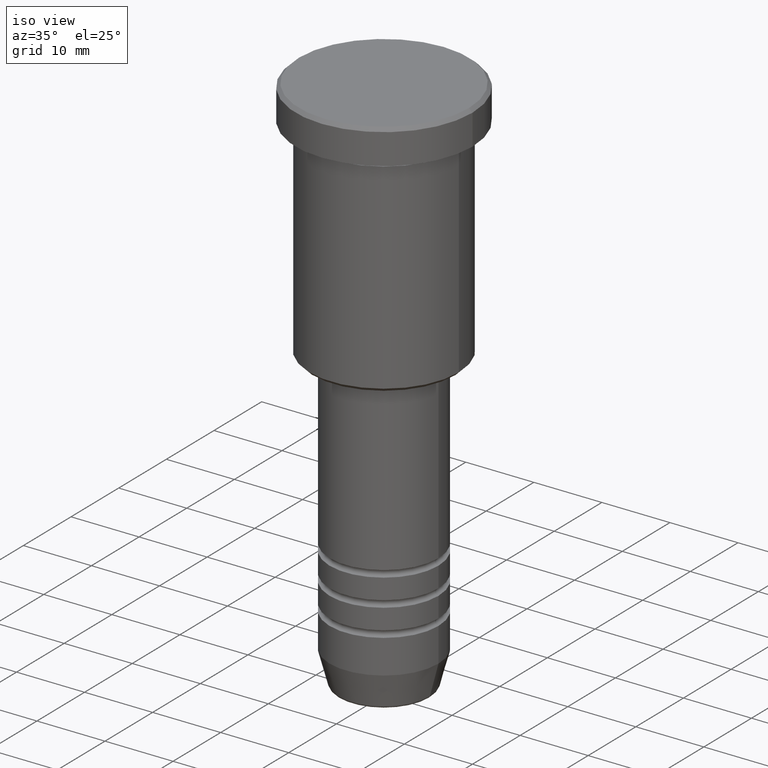
[diagram: clean part render]
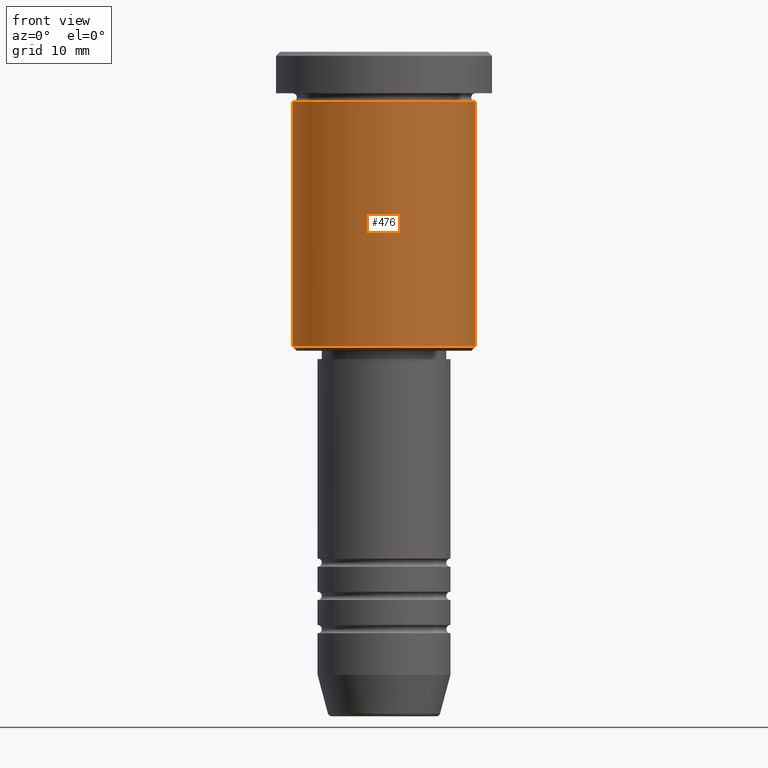
[diagram: tour spotlight — one face highlighted and labeled with its STEP entity id]
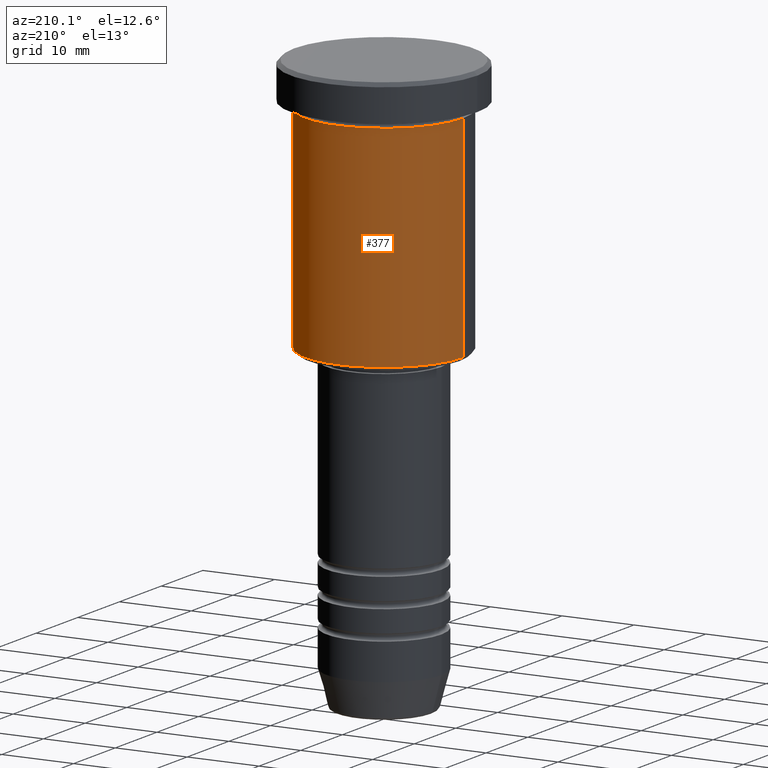
[diagram: tour spotlight — one face highlighted and labeled with its STEP entity id]
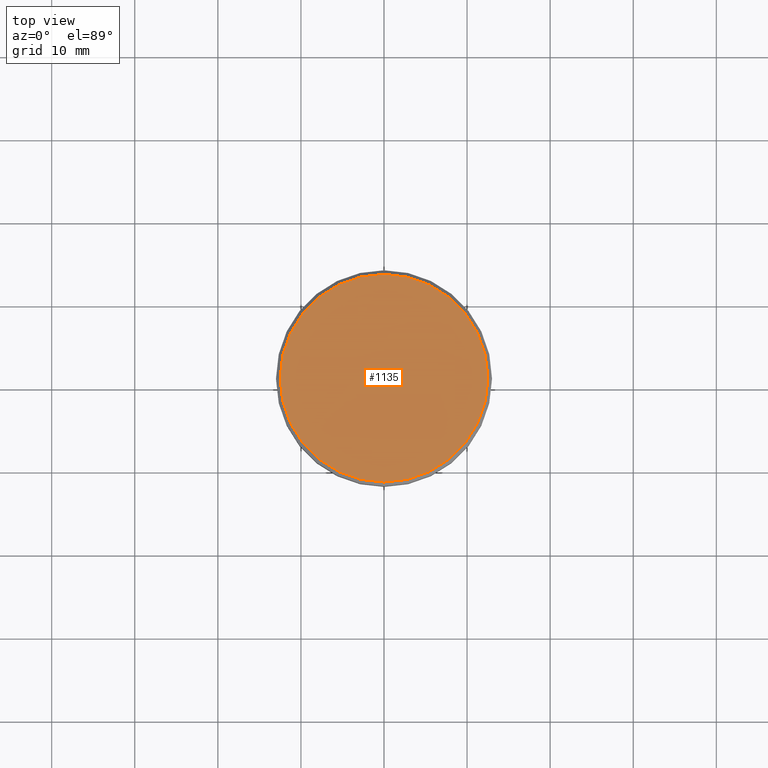
[diagram: tour spotlight — one face highlighted and labeled with its STEP entity id]
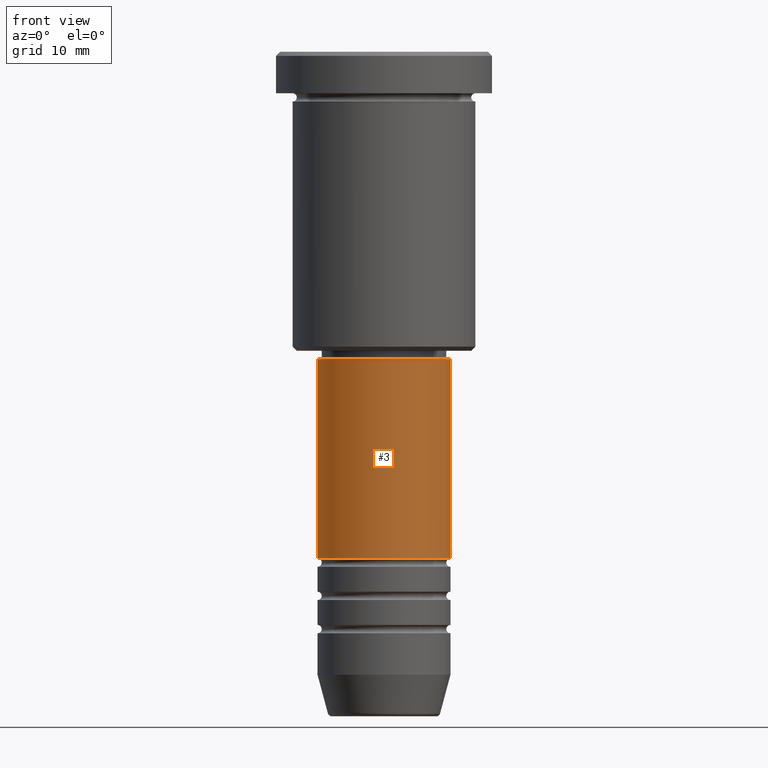
[diagram: tour spotlight — one face highlighted and labeled with its STEP entity id]
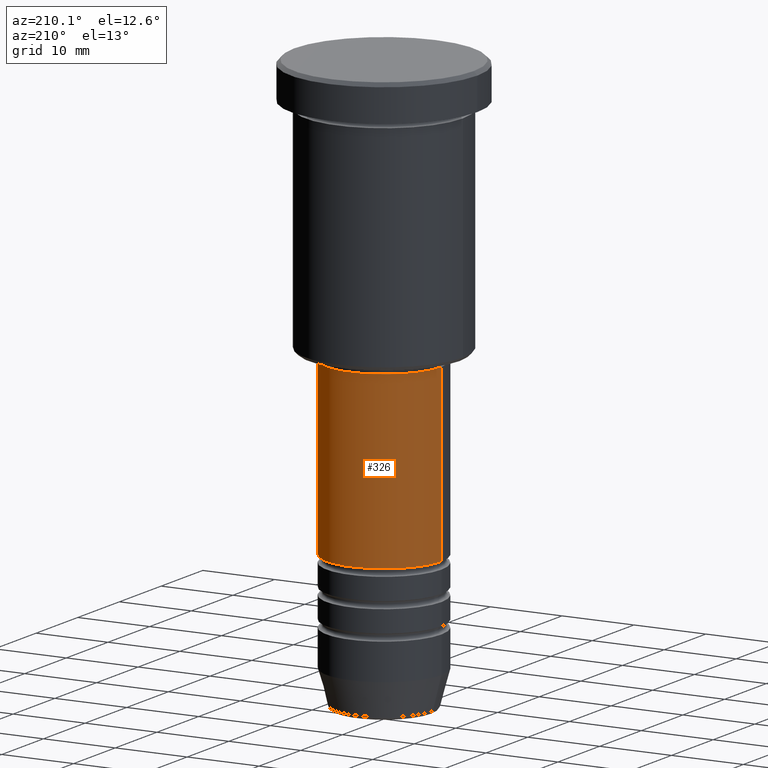
[diagram: tour spotlight — one face highlighted and labeled with its STEP entity id]
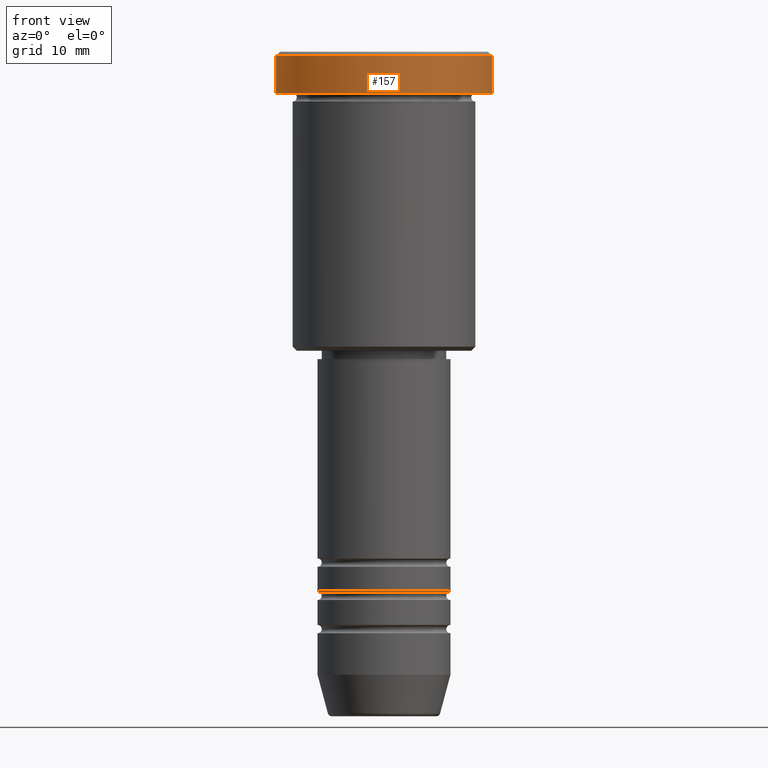
[diagram: tour spotlight — one face highlighted and labeled with its STEP entity id]
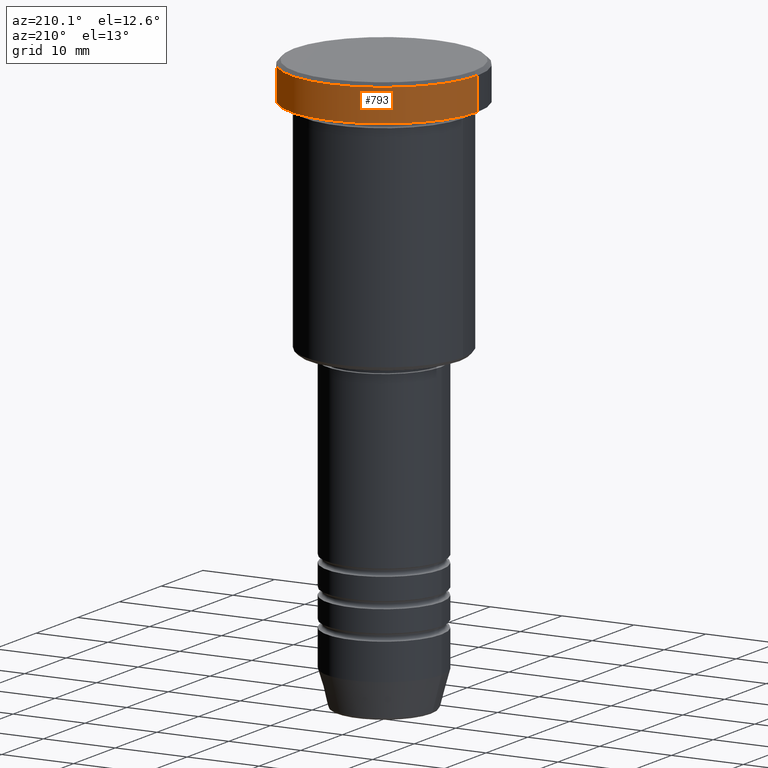
[diagram: tour spotlight — one face highlighted and labeled with its STEP entity id]
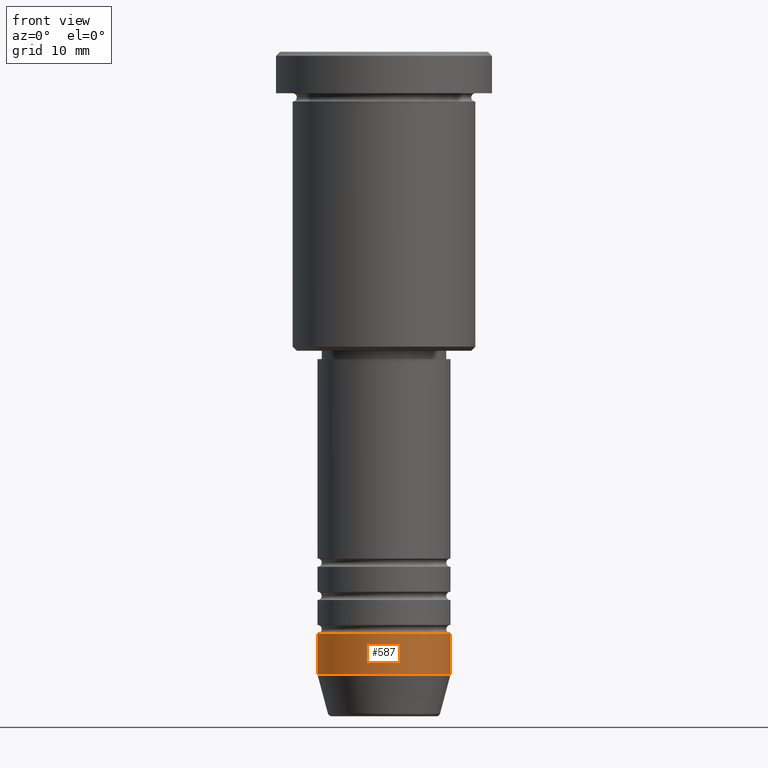
[diagram: tour spotlight — one face highlighted and labeled with its STEP entity id]
A machine part: a face-by-face anatomy tour. The part has 43 B-rep faces; the first image is the clean iso view, then the 8 largest visible faces are spotlighted one at a time (largest first), each with its STEP entity span.

Face 1 — front view, entity #476. In plain terms, the highlighted cylindrical surface (partial cylindrical patch) has radius 11 mm, axis along (-0, -0, 1).
Definition (entity closure, byte-faithful):
#49 = CARTESIAN_POINT ( 'NONE',  ( -11.00000000000000000, 1.347111479062088405E-15, 0.000000000000000000 ) ) ;
#53 = EDGE_CURVE ( 'NONE', #1038, #388, #695, .T. ) ;
#62 = CARTESIAN_POINT ( 'NONE',  ( 0.000000000000000000, 0.000000000000000000, 0.000000000000000000 ) ) ;
#199 = DIRECTION ( 'NONE',  ( -0.000000000000000000, -0.000000000000000000, 1.000000000000000000 ) ) ;
#205 = DIRECTION ( 'NONE',  ( 1.000000000000000000, 0.000000000000000000, 0.000000000000000000 ) ) ;
#235 = DIRECTION ( 'NONE',  ( -1.000000000000000000, 0.000000000000000000, 0.000000000000000000 ) ) ;
#251 = CARTESIAN_POINT ( 'NONE',  ( -11.00000000000000000, 1.347111479062088405E-15, -35.49999999999999289 ) ) ;
#282 = AXIS2_PLACEMENT_3D ( 'NONE', #62, #592, #710 ) ;
#297 = CARTESIAN_POINT ( 'NONE',  ( -11.00000000000000000, 1.347111479062088405E-15, -5.999999999999999112 ) ) ;
#332 = CARTESIAN_POINT ( 'NONE',  ( 11.00000000000000000, 0.000000000000000000, -35.49999999999999289 ) ) ;
#345 = CARTESIAN_POINT ( 'NONE',  ( 0.000000000000000000, 0.000000000000000000, -35.49999999999999289 ) ) ;
#388 = VERTEX_POINT ( 'NONE', #297 ) ;
#412 = FACE_OUTER_BOUND ( 'NONE', #640, .T. ) ;
#459 = EDGE_CURVE ( 'NONE', #1038, #584, #1178, .T. ) ;
#476 = ADVANCED_FACE ( 'NONE', ( #412 ), #516, .T. ) ;
#507 = CARTESIAN_POINT ( 'NONE',  ( 11.00000000000000000, 0.000000000000000000, -5.999999999999999112 ) ) ;
#516 = CYLINDRICAL_SURFACE ( 'NONE', #282, 11.00000000000000000 ) ;
#582 = DIRECTION ( 'NONE',  ( -0.000000000000000000, -0.000000000000000000, 1.000000000000000000 ) ) ;
#584 = VERTEX_POINT ( 'NONE', #332 ) ;
#590 = ORIENTED_EDGE ( 'NONE', *, *, #748, .T. ) ;
#592 = DIRECTION ( 'NONE',  ( -0.000000000000000000, -0.000000000000000000, 1.000000000000000000 ) ) ;
#640 = EDGE_LOOP ( 'NONE', ( #1124, #1181, #590, #644 ) ) ;
#644 = ORIENTED_EDGE ( 'NONE', *, *, #843, .F. ) ;
#695 = LINE ( 'NONE', #49, #700 ) ;
#700 = VECTOR ( 'NONE', #971, 1000.000000000000000 ) ;
#710 = DIRECTION ( 'NONE',  ( 1.000000000000000000, 0.000000000000000000, 0.000000000000000000 ) ) ;
#744 = VECTOR ( 'NONE', #582, 1000.000000000000000 ) ;
#748 = EDGE_CURVE ( 'NONE', #584, #1001, #1020, .T. ) ;
#764 = AXIS2_PLACEMENT_3D ( 'NONE', #927, #199, #205 ) ;
#843 = EDGE_CURVE ( 'NONE', #388, #1001, #953, .T. ) ;
#849 = AXIS2_PLACEMENT_3D ( 'NONE', #345, #970, #235 ) ;
#850 = CARTESIAN_POINT ( 'NONE',  ( 11.00000000000000000, 0.000000000000000000, 0.000000000000000000 ) ) ;
#927 = CARTESIAN_POINT ( 'NONE',  ( 0.000000000000000000, 0.000000000000000000, -5.999999999999999112 ) ) ;
#953 = CIRCLE ( 'NONE', #764, 11.00000000000000000 ) ;
#970 = DIRECTION ( 'NONE',  ( -0.000000000000000000, -0.000000000000000000, 1.000000000000000000 ) ) ;
#971 = DIRECTION ( 'NONE',  ( -0.000000000000000000, -0.000000000000000000, 1.000000000000000000 ) ) ;
#1001 = VERTEX_POINT ( 'NONE', #507 ) ;
#1020 = LINE ( 'NONE', #850, #744 ) ;
#1038 = VERTEX_POINT ( 'NONE', #251 ) ;
#1124 = ORIENTED_EDGE ( 'NONE', *, *, #53, .F. ) ;
#1178 = CIRCLE ( 'NONE', #849, 11.00000000000000000 ) ;
#1181 = ORIENTED_EDGE ( 'NONE', *, *, #459, .T. ) ;

Face 2 — auxiliary view, entity #377. In plain terms, the highlighted cylindrical surface (partial cylindrical patch) has radius 11 mm, axis along (-0, -0, 1).
Definition (entity closure, byte-faithful):
#26 = CYLINDRICAL_SURFACE ( 'NONE', #449, 11.00000000000000000 ) ;
#43 = DIRECTION ( 'NONE',  ( 1.000000000000000000, 0.000000000000000000, 0.000000000000000000 ) ) ;
#49 = CARTESIAN_POINT ( 'NONE',  ( -11.00000000000000000, 1.347111479062088405E-15, 0.000000000000000000 ) ) ;
#53 = EDGE_CURVE ( 'NONE', #1038, #388, #695, .T. ) ;
#61 = EDGE_CURVE ( 'NONE', #584, #1038, #605, .T. ) ;
#84 = AXIS2_PLACEMENT_3D ( 'NONE', #1145, #890, #979 ) ;
#128 = CARTESIAN_POINT ( 'NONE',  ( 0.000000000000000000, 0.000000000000000000, 0.000000000000000000 ) ) ;
#203 = AXIS2_PLACEMENT_3D ( 'NONE', #327, #588, #43 ) ;
#251 = CARTESIAN_POINT ( 'NONE',  ( -11.00000000000000000, 1.347111479062088405E-15, -35.49999999999999289 ) ) ;
#297 = CARTESIAN_POINT ( 'NONE',  ( -11.00000000000000000, 1.347111479062088405E-15, -5.999999999999999112 ) ) ;
#327 = CARTESIAN_POINT ( 'NONE',  ( 0.000000000000000000, 0.000000000000000000, -5.999999999999999112 ) ) ;
#332 = CARTESIAN_POINT ( 'NONE',  ( 11.00000000000000000, 0.000000000000000000, -35.49999999999999289 ) ) ;
#335 = ORIENTED_EDGE ( 'NONE', *, *, #61, .T. ) ;
#367 = ORIENTED_EDGE ( 'NONE', *, *, #53, .T. ) ;
#377 = ADVANCED_FACE ( 'NONE', ( #574 ), #26, .T. ) ;
#388 = VERTEX_POINT ( 'NONE', #297 ) ;
#423 = ORIENTED_EDGE ( 'NONE', *, *, #923, .F. ) ;
#449 = AXIS2_PLACEMENT_3D ( 'NONE', #128, #746, #482 ) ;
#482 = DIRECTION ( 'NONE',  ( 1.000000000000000000, 0.000000000000000000, 0.000000000000000000 ) ) ;
#507 = CARTESIAN_POINT ( 'NONE',  ( 11.00000000000000000, 0.000000000000000000, -5.999999999999999112 ) ) ;
#574 = FACE_OUTER_BOUND ( 'NONE', #594, .T. ) ;
#576 = ORIENTED_EDGE ( 'NONE', *, *, #748, .F. ) ;
#582 = DIRECTION ( 'NONE',  ( -0.000000000000000000, -0.000000000000000000, 1.000000000000000000 ) ) ;
#584 = VERTEX_POINT ( 'NONE', #332 ) ;
#588 = DIRECTION ( 'NONE',  ( -0.000000000000000000, -0.000000000000000000, 1.000000000000000000 ) ) ;
#594 = EDGE_LOOP ( 'NONE', ( #335, #367, #423, #576 ) ) ;
#605 = CIRCLE ( 'NONE', #84, 11.00000000000000000 ) ;
#632 = CIRCLE ( 'NONE', #203, 11.00000000000000000 ) ;
#695 = LINE ( 'NONE', #49, #700 ) ;
#700 = VECTOR ( 'NONE', #971, 1000.000000000000000 ) ;
#744 = VECTOR ( 'NONE', #582, 1000.000000000000000 ) ;
#746 = DIRECTION ( 'NONE',  ( -0.000000000000000000, -0.000000000000000000, 1.000000000000000000 ) ) ;
#748 = EDGE_CURVE ( 'NONE', #584, #1001, #1020, .T. ) ;
#850 = CARTESIAN_POINT ( 'NONE',  ( 11.00000000000000000, 0.000000000000000000, 0.000000000000000000 ) ) ;
#890 = DIRECTION ( 'NONE',  ( -0.000000000000000000, -0.000000000000000000, 1.000000000000000000 ) ) ;
#923 = EDGE_CURVE ( 'NONE', #1001, #388, #632, .T. ) ;
#971 = DIRECTION ( 'NONE',  ( -0.000000000000000000, -0.000000000000000000, 1.000000000000000000 ) ) ;
#979 = DIRECTION ( 'NONE',  ( -1.000000000000000000, 0.000000000000000000, 0.000000000000000000 ) ) ;
#1001 = VERTEX_POINT ( 'NONE', #507 ) ;
#1020 = LINE ( 'NONE', #850, #744 ) ;
#1038 = VERTEX_POINT ( 'NONE', #251 ) ;
#1145 = CARTESIAN_POINT ( 'NONE',  ( 0.000000000000000000, 0.000000000000000000, -35.49999999999999289 ) ) ;

Face 3 — top view, entity #1135. In plain terms, the highlighted planar face has unit normal (0, -0, 1).
Definition (entity closure, byte-faithful):
#64 = VERTEX_POINT ( 'NONE', #338 ) ;
#110 = CIRCLE ( 'NONE', #589, 12.50000000000002487 ) ;
#127 = EDGE_CURVE ( 'NONE', #537, #64, #887, .T. ) ;
#193 = FACE_OUTER_BOUND ( 'NONE', #490, .T. ) ;
#206 = CARTESIAN_POINT ( 'NONE',  ( 0.000000000000000000, 0.000000000000000000, 0.000000000000000000 ) ) ;
#224 = CARTESIAN_POINT ( 'NONE',  ( 12.50000000000002487, 1.561424668912876886E-15, 0.000000000000000000 ) ) ;
#307 = EDGE_CURVE ( 'NONE', #64, #537, #110, .T. ) ;
#316 = ORIENTED_EDGE ( 'NONE', *, *, #127, .T. ) ;
#333 = DIRECTION ( 'NONE',  ( 1.000000000000000000, 0.000000000000000000, 0.000000000000000000 ) ) ;
#338 = CARTESIAN_POINT ( 'NONE',  ( -12.50000000000002487, 0.000000000000000000, 0.000000000000000000 ) ) ;
#393 = DIRECTION ( 'NONE',  ( -0.000000000000000000, -0.000000000000000000, 1.000000000000000000 ) ) ;
#415 = DIRECTION ( 'NONE',  ( -0.000000000000000000, -0.000000000000000000, 1.000000000000000000 ) ) ;
#490 = EDGE_LOOP ( 'NONE', ( #651, #316 ) ) ;
#537 = VERTEX_POINT ( 'NONE', #224 ) ;
#543 = PLANE ( 'NONE',  #797 ) ;
#561 = CARTESIAN_POINT ( 'NONE',  ( 0.000000000000000000, 0.000000000000000000, 0.000000000000000000 ) ) ;
#565 = DIRECTION ( 'NONE',  ( 1.000000000000000000, 0.000000000000000000, 0.000000000000000000 ) ) ;
#589 = AXIS2_PLACEMENT_3D ( 'NONE', #206, #393, #565 ) ;
#651 = ORIENTED_EDGE ( 'NONE', *, *, #307, .T. ) ;
#665 = AXIS2_PLACEMENT_3D ( 'NONE', #866, #415, #333 ) ;
#730 = DIRECTION ( 'NONE',  ( 1.000000000000000000, 0.000000000000000000, 0.000000000000000000 ) ) ;
#797 = AXIS2_PLACEMENT_3D ( 'NONE', #561, #905, #730 ) ;
#866 = CARTESIAN_POINT ( 'NONE',  ( 0.000000000000000000, 0.000000000000000000, 0.000000000000000000 ) ) ;
#887 = CIRCLE ( 'NONE', #665, 12.50000000000002487 ) ;
#905 = DIRECTION ( 'NONE',  ( 0.000000000000000000, -0.000000000000000000, 1.000000000000000000 ) ) ;
#1135 = ADVANCED_FACE ( 'NONE', ( #193 ), #543, .T. ) ;

Face 4 — front view, entity #3. In plain terms, the highlighted cylindrical surface (partial cylindrical patch) has radius 8 mm, axis along (-0, -0, 1).
Definition (entity closure, byte-faithful):
#3 = ADVANCED_FACE ( 'NONE', ( #315 ), #683, .T. ) ;
#20 = ORIENTED_EDGE ( 'NONE', *, *, #495, .T. ) ;
#74 = AXIS2_PLACEMENT_3D ( 'NONE', #654, #356, #724 ) ;
#100 = VERTEX_POINT ( 'NONE', #975 ) ;
#198 = ORIENTED_EDGE ( 'NONE', *, *, #1136, .F. ) ;
#219 = CARTESIAN_POINT ( 'NONE',  ( 0.000000000000000000, 0.000000000000000000, 0.000000000000000000 ) ) ;
#230 = DIRECTION ( 'NONE',  ( -0.000000000000000000, -0.000000000000000000, 1.000000000000000000 ) ) ;
#239 = VECTOR ( 'NONE', #230, 1000.000000000000000 ) ;
#242 = LINE ( 'NONE', #882, #777 ) ;
#311 = VERTEX_POINT ( 'NONE', #1111 ) ;
#315 = FACE_OUTER_BOUND ( 'NONE', #628, .T. ) ;
#328 = DIRECTION ( 'NONE',  ( -0.000000000000000000, -0.000000000000000000, 1.000000000000000000 ) ) ;
#336 = CARTESIAN_POINT ( 'NONE',  ( 0.000000000000000000, 0.000000000000000000, -61.00000000000000711 ) ) ;
#356 = DIRECTION ( 'NONE',  ( -0.000000000000000000, -0.000000000000000000, 1.000000000000000000 ) ) ;
#406 = DIRECTION ( 'NONE',  ( 1.000000000000000000, 0.000000000000000000, 0.000000000000000000 ) ) ;
#422 = DIRECTION ( 'NONE',  ( 1.000000000000000000, 0.000000000000000000, 0.000000000000000000 ) ) ;
#460 = EDGE_CURVE ( 'NONE', #100, #943, #242, .T. ) ;
#462 = ORIENTED_EDGE ( 'NONE', *, *, #570, .T. ) ;
#495 = EDGE_CURVE ( 'NONE', #100, #1168, #1126, .T. ) ;
#570 = EDGE_CURVE ( 'NONE', #1168, #311, #778, .T. ) ;
#615 = CIRCLE ( 'NONE', #74, 8.000000000000000000 ) ;
#628 = EDGE_LOOP ( 'NONE', ( #1106, #20, #462, #198 ) ) ;
#647 = AXIS2_PLACEMENT_3D ( 'NONE', #336, #963, #406 ) ;
#654 = CARTESIAN_POINT ( 'NONE',  ( 0.000000000000000000, 0.000000000000000000, -37.00000000000000711 ) ) ;
#683 = CYLINDRICAL_SURFACE ( 'NONE', #1039, 8.000000000000000000 ) ;
#698 = CARTESIAN_POINT ( 'NONE',  ( 8.000000000000000000, 0.000000000000000000, 0.000000000000000000 ) ) ;
#711 = DIRECTION ( 'NONE',  ( -0.000000000000000000, -0.000000000000000000, 1.000000000000000000 ) ) ;
#724 = DIRECTION ( 'NONE',  ( 1.000000000000000000, 0.000000000000000000, 0.000000000000000000 ) ) ;
#777 = VECTOR ( 'NONE', #328, 1000.000000000000000 ) ;
#778 = LINE ( 'NONE', #698, #239 ) ;
#882 = CARTESIAN_POINT ( 'NONE',  ( -8.000000000000000000, 9.797174393178825657E-16, 0.000000000000000000 ) ) ;
#943 = VERTEX_POINT ( 'NONE', #989 ) ;
#963 = DIRECTION ( 'NONE',  ( -0.000000000000000000, -0.000000000000000000, 1.000000000000000000 ) ) ;
#975 = CARTESIAN_POINT ( 'NONE',  ( -8.000000000000000000, 9.797174393178825657E-16, -61.00000000000000711 ) ) ;
#989 = CARTESIAN_POINT ( 'NONE',  ( -8.000000000000000000, 9.797174393178825657E-16, -37.00000000000000711 ) ) ;
#998 = CARTESIAN_POINT ( 'NONE',  ( 8.000000000000000000, 0.000000000000000000, -61.00000000000000711 ) ) ;
#1039 = AXIS2_PLACEMENT_3D ( 'NONE', #219, #711, #422 ) ;
#1106 = ORIENTED_EDGE ( 'NONE', *, *, #460, .F. ) ;
#1111 = CARTESIAN_POINT ( 'NONE',  ( 8.000000000000000000, 0.000000000000000000, -37.00000000000000711 ) ) ;
#1126 = CIRCLE ( 'NONE', #647, 8.000000000000000000 ) ;
#1136 = EDGE_CURVE ( 'NONE', #943, #311, #615, .T. ) ;
#1168 = VERTEX_POINT ( 'NONE', #998 ) ;

Face 5 — auxiliary view, entity #326. In plain terms, the highlighted cylindrical surface (partial cylindrical patch) has radius 8 mm, axis along (-0, -0, 1).
Definition (entity closure, byte-faithful):
#100 = VERTEX_POINT ( 'NONE', #975 ) ;
#119 = EDGE_LOOP ( 'NONE', ( #855, #805, #1093, #542 ) ) ;
#123 = DIRECTION ( 'NONE',  ( -0.000000000000000000, -0.000000000000000000, 1.000000000000000000 ) ) ;
#180 = AXIS2_PLACEMENT_3D ( 'NONE', #682, #123, #579 ) ;
#230 = DIRECTION ( 'NONE',  ( -0.000000000000000000, -0.000000000000000000, 1.000000000000000000 ) ) ;
#239 = VECTOR ( 'NONE', #230, 1000.000000000000000 ) ;
#242 = LINE ( 'NONE', #882, #777 ) ;
#290 = CARTESIAN_POINT ( 'NONE',  ( 0.000000000000000000, 0.000000000000000000, -61.00000000000000711 ) ) ;
#306 = FACE_OUTER_BOUND ( 'NONE', #119, .T. ) ;
#311 = VERTEX_POINT ( 'NONE', #1111 ) ;
#326 = ADVANCED_FACE ( 'NONE', ( #306 ), #1015, .T. ) ;
#328 = DIRECTION ( 'NONE',  ( -0.000000000000000000, -0.000000000000000000, 1.000000000000000000 ) ) ;
#368 = CARTESIAN_POINT ( 'NONE',  ( 0.000000000000000000, 0.000000000000000000, -37.00000000000000711 ) ) ;
#396 = DIRECTION ( 'NONE',  ( -0.000000000000000000, -0.000000000000000000, 1.000000000000000000 ) ) ;
#444 = DIRECTION ( 'NONE',  ( 1.000000000000000000, 0.000000000000000000, 0.000000000000000000 ) ) ;
#458 = DIRECTION ( 'NONE',  ( -0.000000000000000000, -0.000000000000000000, 1.000000000000000000 ) ) ;
#460 = EDGE_CURVE ( 'NONE', #100, #943, #242, .T. ) ;
#469 = CIRCLE ( 'NONE', #631, 8.000000000000000000 ) ;
#531 = AXIS2_PLACEMENT_3D ( 'NONE', #368, #458, #444 ) ;
#542 = ORIENTED_EDGE ( 'NONE', *, *, #570, .F. ) ;
#570 = EDGE_CURVE ( 'NONE', #1168, #311, #778, .T. ) ;
#579 = DIRECTION ( 'NONE',  ( 1.000000000000000000, 0.000000000000000000, 0.000000000000000000 ) ) ;
#631 = AXIS2_PLACEMENT_3D ( 'NONE', #290, #396, #1120 ) ;
#661 = EDGE_CURVE ( 'NONE', #311, #943, #792, .T. ) ;
#682 = CARTESIAN_POINT ( 'NONE',  ( 0.000000000000000000, 0.000000000000000000, 0.000000000000000000 ) ) ;
#698 = CARTESIAN_POINT ( 'NONE',  ( 8.000000000000000000, 0.000000000000000000, 0.000000000000000000 ) ) ;
#749 = EDGE_CURVE ( 'NONE', #1168, #100, #469, .T. ) ;
#777 = VECTOR ( 'NONE', #328, 1000.000000000000000 ) ;
#778 = LINE ( 'NONE', #698, #239 ) ;
#792 = CIRCLE ( 'NONE', #531, 8.000000000000000000 ) ;
#805 = ORIENTED_EDGE ( 'NONE', *, *, #460, .T. ) ;
#855 = ORIENTED_EDGE ( 'NONE', *, *, #749, .T. ) ;
#882 = CARTESIAN_POINT ( 'NONE',  ( -8.000000000000000000, 9.797174393178825657E-16, 0.000000000000000000 ) ) ;
#943 = VERTEX_POINT ( 'NONE', #989 ) ;
#975 = CARTESIAN_POINT ( 'NONE',  ( -8.000000000000000000, 9.797174393178825657E-16, -61.00000000000000711 ) ) ;
#989 = CARTESIAN_POINT ( 'NONE',  ( -8.000000000000000000, 9.797174393178825657E-16, -37.00000000000000711 ) ) ;
#998 = CARTESIAN_POINT ( 'NONE',  ( 8.000000000000000000, 0.000000000000000000, -61.00000000000000711 ) ) ;
#1015 = CYLINDRICAL_SURFACE ( 'NONE', #180, 8.000000000000000000 ) ;
#1093 = ORIENTED_EDGE ( 'NONE', *, *, #661, .F. ) ;
#1111 = CARTESIAN_POINT ( 'NONE',  ( 8.000000000000000000, 0.000000000000000000, -37.00000000000000711 ) ) ;
#1120 = DIRECTION ( 'NONE',  ( 1.000000000000000000, 0.000000000000000000, 0.000000000000000000 ) ) ;
#1168 = VERTEX_POINT ( 'NONE', #998 ) ;

Face 6 — front view, entity #157. In plain terms, the highlighted cylindrical surface (partial cylindrical patch) has radius 13 mm, axis along (-0, -0, 1).
Definition (entity closure, byte-faithful):
#52 = CIRCLE ( 'NONE', #93, 13.00000000000000000 ) ;
#73 = ORIENTED_EDGE ( 'NONE', *, *, #880, .F. ) ;
#77 = VERTEX_POINT ( 'NONE', #1066 ) ;
#93 = AXIS2_PLACEMENT_3D ( 'NONE', #874, #784, #1149 ) ;
#101 = CARTESIAN_POINT ( 'NONE',  ( 13.00000000000000000, 0.000000000000000000, 0.000000000000000000 ) ) ;
#144 = CARTESIAN_POINT ( 'NONE',  ( 13.00000000000000000, 0.000000000000000000, -0.4999999999999796274 ) ) ;
#156 = VERTEX_POINT ( 'NONE', #160 ) ;
#157 = ADVANCED_FACE ( 'NONE', ( #527 ), #408, .T. ) ;
#160 = CARTESIAN_POINT ( 'NONE',  ( 13.00000000000000000, 0.000000000000000000, -5.000000000000000000 ) ) ;
#221 = VECTOR ( 'NONE', #1030, 1000.000000000000000 ) ;
#321 = DIRECTION ( 'NONE',  ( -0.000000000000000000, -0.000000000000000000, 1.000000000000000000 ) ) ;
#365 = CARTESIAN_POINT ( 'NONE',  ( 0.000000000000000000, 0.000000000000000000, -5.000000000000000000 ) ) ;
#369 = DIRECTION ( 'NONE',  ( 1.000000000000000000, 0.000000000000000000, 0.000000000000000000 ) ) ;
#408 = CYLINDRICAL_SURFACE ( 'NONE', #848, 13.00000000000000000 ) ;
#420 = CARTESIAN_POINT ( 'NONE',  ( -13.00000000000000000, 1.592040838891559095E-15, -5.000000000000000000 ) ) ;
#438 = ORIENTED_EDGE ( 'NONE', *, *, #575, .T. ) ;
#481 = LINE ( 'NONE', #571, #221 ) ;
#527 = FACE_OUTER_BOUND ( 'NONE', #741, .T. ) ;
#571 = CARTESIAN_POINT ( 'NONE',  ( -13.00000000000000000, 1.592040838891559095E-15, 0.000000000000000000 ) ) ;
#573 = AXIS2_PLACEMENT_3D ( 'NONE', #365, #742, #1107 ) ;
#575 = EDGE_CURVE ( 'NONE', #980, #77, #52, .T. ) ;
#625 = LINE ( 'NONE', #101, #831 ) ;
#714 = EDGE_CURVE ( 'NONE', #156, #980, #625, .T. ) ;
#741 = EDGE_LOOP ( 'NONE', ( #73, #789, #907, #438 ) ) ;
#742 = DIRECTION ( 'NONE',  ( -0.000000000000000000, -0.000000000000000000, 1.000000000000000000 ) ) ;
#784 = DIRECTION ( 'NONE',  ( 0.000000000000000000, 0.000000000000000000, -1.000000000000000000 ) ) ;
#789 = ORIENTED_EDGE ( 'NONE', *, *, #1082, .T. ) ;
#831 = VECTOR ( 'NONE', #1091, 1000.000000000000000 ) ;
#848 = AXIS2_PLACEMENT_3D ( 'NONE', #1139, #321, #369 ) ;
#874 = CARTESIAN_POINT ( 'NONE',  ( 0.000000000000000000, 0.000000000000000000, -0.4999999999999796274 ) ) ;
#880 = EDGE_CURVE ( 'NONE', #1031, #77, #481, .T. ) ;
#907 = ORIENTED_EDGE ( 'NONE', *, *, #714, .T. ) ;
#980 = VERTEX_POINT ( 'NONE', #144 ) ;
#986 = CIRCLE ( 'NONE', #573, 13.00000000000000000 ) ;
#1030 = DIRECTION ( 'NONE',  ( -0.000000000000000000, -0.000000000000000000, 1.000000000000000000 ) ) ;
#1031 = VERTEX_POINT ( 'NONE', #420 ) ;
#1066 = CARTESIAN_POINT ( 'NONE',  ( -13.00000000000000000, 1.592040838891559095E-15, -0.4999999999999796274 ) ) ;
#1082 = EDGE_CURVE ( 'NONE', #1031, #156, #986, .T. ) ;
#1091 = DIRECTION ( 'NONE',  ( -0.000000000000000000, -0.000000000000000000, 1.000000000000000000 ) ) ;
#1107 = DIRECTION ( 'NONE',  ( 1.000000000000000000, 0.000000000000000000, 0.000000000000000000 ) ) ;
#1139 = CARTESIAN_POINT ( 'NONE',  ( 0.000000000000000000, 0.000000000000000000, 0.000000000000000000 ) ) ;
#1149 = DIRECTION ( 'NONE',  ( 1.000000000000000000, 0.000000000000000000, 0.000000000000000000 ) ) ;

Face 7 — auxiliary view, entity #793. In plain terms, the highlighted cylindrical surface (partial cylindrical patch) has radius 13 mm, axis along (-0, -0, 1).
Definition (entity closure, byte-faithful):
#13 = CYLINDRICAL_SURFACE ( 'NONE', #383, 13.00000000000000000 ) ;
#67 = EDGE_LOOP ( 'NONE', ( #961, #514, #877, #739 ) ) ;
#77 = VERTEX_POINT ( 'NONE', #1066 ) ;
#83 = DIRECTION ( 'NONE',  ( 0.000000000000000000, 0.000000000000000000, -1.000000000000000000 ) ) ;
#91 = AXIS2_PLACEMENT_3D ( 'NONE', #716, #1096, #349 ) ;
#101 = CARTESIAN_POINT ( 'NONE',  ( 13.00000000000000000, 0.000000000000000000, 0.000000000000000000 ) ) ;
#144 = CARTESIAN_POINT ( 'NONE',  ( 13.00000000000000000, 0.000000000000000000, -0.4999999999999796274 ) ) ;
#148 = CIRCLE ( 'NONE', #91, 13.00000000000000000 ) ;
#156 = VERTEX_POINT ( 'NONE', #160 ) ;
#160 = CARTESIAN_POINT ( 'NONE',  ( 13.00000000000000000, 0.000000000000000000, -5.000000000000000000 ) ) ;
#179 = EDGE_CURVE ( 'NONE', #156, #1031, #148, .T. ) ;
#221 = VECTOR ( 'NONE', #1030, 1000.000000000000000 ) ;
#240 = AXIS2_PLACEMENT_3D ( 'NONE', #900, #83, #312 ) ;
#259 = CIRCLE ( 'NONE', #240, 13.00000000000000000 ) ;
#295 = CARTESIAN_POINT ( 'NONE',  ( 0.000000000000000000, 0.000000000000000000, 0.000000000000000000 ) ) ;
#312 = DIRECTION ( 'NONE',  ( 1.000000000000000000, 0.000000000000000000, 0.000000000000000000 ) ) ;
#349 = DIRECTION ( 'NONE',  ( 1.000000000000000000, 0.000000000000000000, 0.000000000000000000 ) ) ;
#383 = AXIS2_PLACEMENT_3D ( 'NONE', #295, #655, #386 ) ;
#386 = DIRECTION ( 'NONE',  ( 1.000000000000000000, 0.000000000000000000, 0.000000000000000000 ) ) ;
#420 = CARTESIAN_POINT ( 'NONE',  ( -13.00000000000000000, 1.592040838891559095E-15, -5.000000000000000000 ) ) ;
#481 = LINE ( 'NONE', #571, #221 ) ;
#514 = ORIENTED_EDGE ( 'NONE', *, *, #880, .T. ) ;
#571 = CARTESIAN_POINT ( 'NONE',  ( -13.00000000000000000, 1.592040838891559095E-15, 0.000000000000000000 ) ) ;
#625 = LINE ( 'NONE', #101, #831 ) ;
#655 = DIRECTION ( 'NONE',  ( -0.000000000000000000, -0.000000000000000000, 1.000000000000000000 ) ) ;
#714 = EDGE_CURVE ( 'NONE', #156, #980, #625, .T. ) ;
#716 = CARTESIAN_POINT ( 'NONE',  ( 0.000000000000000000, 0.000000000000000000, -5.000000000000000000 ) ) ;
#739 = ORIENTED_EDGE ( 'NONE', *, *, #714, .F. ) ;
#793 = ADVANCED_FACE ( 'NONE', ( #1110 ), #13, .T. ) ;
#831 = VECTOR ( 'NONE', #1091, 1000.000000000000000 ) ;
#877 = ORIENTED_EDGE ( 'NONE', *, *, #959, .T. ) ;
#880 = EDGE_CURVE ( 'NONE', #1031, #77, #481, .T. ) ;
#900 = CARTESIAN_POINT ( 'NONE',  ( 0.000000000000000000, 0.000000000000000000, -0.4999999999999796274 ) ) ;
#959 = EDGE_CURVE ( 'NONE', #77, #980, #259, .T. ) ;
#961 = ORIENTED_EDGE ( 'NONE', *, *, #179, .T. ) ;
#980 = VERTEX_POINT ( 'NONE', #144 ) ;
#1030 = DIRECTION ( 'NONE',  ( -0.000000000000000000, -0.000000000000000000, 1.000000000000000000 ) ) ;
#1031 = VERTEX_POINT ( 'NONE', #420 ) ;
#1066 = CARTESIAN_POINT ( 'NONE',  ( -13.00000000000000000, 1.592040838891559095E-15, -0.4999999999999796274 ) ) ;
#1091 = DIRECTION ( 'NONE',  ( -0.000000000000000000, -0.000000000000000000, 1.000000000000000000 ) ) ;
#1096 = DIRECTION ( 'NONE',  ( -0.000000000000000000, -0.000000000000000000, 1.000000000000000000 ) ) ;
#1110 = FACE_OUTER_BOUND ( 'NONE', #67, .T. ) ;

Face 8 — front view, entity #587. In plain terms, the highlighted cylindrical surface (partial cylindrical patch) has radius 8 mm, axis along (-0, -0, 1).
Definition (entity closure, byte-faithful):
#54 = VECTOR ( 'NONE', #630, 1000.000000000000000 ) ;
#71 = AXIS2_PLACEMENT_3D ( 'NONE', #229, #538, #1053 ) ;
#85 = DIRECTION ( 'NONE',  ( 1.000000000000000000, 0.000000000000000000, 0.000000000000000000 ) ) ;
#97 = VERTEX_POINT ( 'NONE', #236 ) ;
#147 = EDGE_CURVE ( 'NONE', #452, #225, #430, .T. ) ;
#165 = CIRCLE ( 'NONE', #71, 8.000000000000000000 ) ;
#186 = CARTESIAN_POINT ( 'NONE',  ( 8.000000000000000000, 0.000000000000000000, -75.00000000000001421 ) ) ;
#225 = VERTEX_POINT ( 'NONE', #186 ) ;
#229 = CARTESIAN_POINT ( 'NONE',  ( 0.000000000000000000, 0.000000000000000000, -70.00000000000000000 ) ) ;
#236 = CARTESIAN_POINT ( 'NONE',  ( -8.000000000000000000, 9.797174393178825657E-16, -70.00000000000000000 ) ) ;
#317 = CARTESIAN_POINT ( 'NONE',  ( 8.000000000000000000, 0.000000000000000000, 0.000000000000000000 ) ) ;
#376 = EDGE_CURVE ( 'NONE', #452, #97, #1021, .T. ) ;
#418 = ORIENTED_EDGE ( 'NONE', *, *, #898, .F. ) ;
#430 = CIRCLE ( 'NONE', #1043, 8.000000000000000000 ) ;
#452 = VERTEX_POINT ( 'NONE', #1138 ) ;
#538 = DIRECTION ( 'NONE',  ( -0.000000000000000000, -0.000000000000000000, 1.000000000000000000 ) ) ;
#568 = VECTOR ( 'NONE', #947, 1000.000000000000000 ) ;
#587 = ADVANCED_FACE ( 'NONE', ( #995 ), #738, .T. ) ;
#621 = DIRECTION ( 'NONE',  ( 1.000000000000000000, 0.000000000000000000, 0.000000000000000000 ) ) ;
#630 = DIRECTION ( 'NONE',  ( -0.000000000000000000, -0.000000000000000000, 1.000000000000000000 ) ) ;
#666 = AXIS2_PLACEMENT_3D ( 'NONE', #720, #821, #85 ) ;
#681 = ORIENTED_EDGE ( 'NONE', *, *, #147, .T. ) ;
#720 = CARTESIAN_POINT ( 'NONE',  ( 0.000000000000000000, 0.000000000000000000, 0.000000000000000000 ) ) ;
#729 = EDGE_LOOP ( 'NONE', ( #734, #681, #1056, #418 ) ) ;
#734 = ORIENTED_EDGE ( 'NONE', *, *, #376, .F. ) ;
#735 = CARTESIAN_POINT ( 'NONE',  ( 8.000000000000000000, 0.000000000000000000, -70.00000000000000000 ) ) ;
#738 = CYLINDRICAL_SURFACE ( 'NONE', #666, 8.000000000000000000 ) ;
#765 = CARTESIAN_POINT ( 'NONE',  ( -8.000000000000000000, 9.797174393178825657E-16, 0.000000000000000000 ) ) ;
#821 = DIRECTION ( 'NONE',  ( -0.000000000000000000, -0.000000000000000000, 1.000000000000000000 ) ) ;
#863 = LINE ( 'NONE', #317, #54 ) ;
#898 = EDGE_CURVE ( 'NONE', #97, #1146, #165, .T. ) ;
#940 = EDGE_CURVE ( 'NONE', #225, #1146, #863, .T. ) ;
#947 = DIRECTION ( 'NONE',  ( -0.000000000000000000, -0.000000000000000000, 1.000000000000000000 ) ) ;
#995 = FACE_OUTER_BOUND ( 'NONE', #729, .T. ) ;
#1021 = LINE ( 'NONE', #765, #568 ) ;
#1043 = AXIS2_PLACEMENT_3D ( 'NONE', #1164, #1070, #621 ) ;
#1053 = DIRECTION ( 'NONE',  ( 1.000000000000000000, 0.000000000000000000, 0.000000000000000000 ) ) ;
#1056 = ORIENTED_EDGE ( 'NONE', *, *, #940, .T. ) ;
#1070 = DIRECTION ( 'NONE',  ( -0.000000000000000000, -0.000000000000000000, 1.000000000000000000 ) ) ;
#1138 = CARTESIAN_POINT ( 'NONE',  ( -8.000000000000000000, 9.797174393178825657E-16, -75.00000000000001421 ) ) ;
#1146 = VERTEX_POINT ( 'NONE', #735 ) ;
#1164 = CARTESIAN_POINT ( 'NONE',  ( 0.000000000000000000, 0.000000000000000000, -75.00000000000001421 ) ) ;